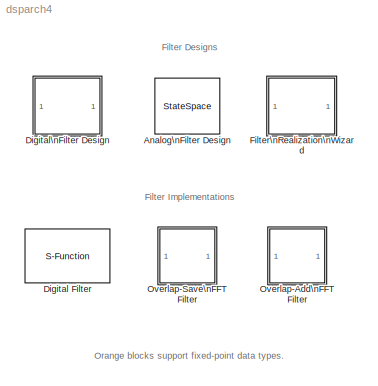
MODEL dsparch4
KIND library
BLOCK [StateSpace] Analog\nFilter Design
  A = a
  B = b
  C = c
  D = d
  MaskCallbackString = dspblkanalog|dspblkanalog|||||
  MaskDescription = Design one of several standard analog filters, implemented in state-space form.
  MaskDisplay = plot(w,h); text(.05,.9,str);\n
  MaskEnableString = on,on,on,on,on,on,on
  MaskHelp = web(dspbhelp);
  MaskIconFrame = on
  MaskIconOpaque = on
  MaskIconRotate = none
  MaskIconUnits = normalized
  MaskInitialization = [a,b,c,d,h,w,str]=dspblkanalog('design', method,filttype,N,Wlo,Whi,Rp,Rs);\n
  MaskPromptString = Design method:|Filter type:|Filter order:|Passband edge frequency (rads/sec):|(unused)|Passband ripple in dB:|Stopband attenuation in dB:
  MaskSelfModifiable = on
  MaskStyleString = popup(Butterworth|Chebyshev I|Chebyshev II|Elliptic|Bessel),popup(Lowpass|Highpass|Bandpass|Bandstop),edit,edit,edit,edit,edit
  MaskTabNameString = ,,,,,,
  MaskToolTipString = on,on,on,on,on,on,on
  MaskTunableValueString = on,on,off,on,on,on,on
  MaskType = Analog Filter Design
  MaskValueString = Butterworth|Lowpass|8|30|80|2|40
  MaskVarAliasString = ,,,,,,
  MaskVariables = method=&1;filttype=&2;N=@3;Wlo=@4;Whi=@5;Rp=@6;Rs=@7;
  MaskVisibilityString = on,on,on,on,off,off,off
BLOCK [S-Function] Digital Filter
  CopyFcn = dspfixptcopycallback
  DialogController = dspDDGCreate
  DialogControllerArgs = DataTag2
  FunctionName = sdspfilter2
  MaskCallbackString = |||||||||||||||||||||||||||||||||||||||||||||||||||||
  MaskDescription = Independently filter each channel of the input over time using a specified digital filter implementation.  Filter coefficients can be specified using either tunable mask dialog parameters or separate input ports (useful for time-varying coefficients).\n\nTime-varying coefficients are supported at one of two possible rates of coefficient update in frame-based processing.  The coefficients can updat...<+252ch>
  MaskDisplay = text(0.5,0.85,s.icon,'horiz','center');\nplot(s.x, s.y);\nport_label('input',s.i1,s.s1);\nport_label('input',s.i2,s.s2);\nport_label('input',1,s.in);\nport_label('output',1,s.out);\n
  MaskEnableString = on,on,on,on,on,on,on,on,on,on,on,on,on,on,off,off,off,on,on,on,on,on,on,on,on,on,off,on,on,on,off,on,on,on,off,on,on,on,off,on,on,on,on,on,on,on,on,on,on,on,on,on,on,on
  MaskHelp = web(dspbhelp);
  MaskIconFrame = on
  MaskIconOpaque = on
  MaskIconRotate = none
  MaskIconUnits = normalized
  MaskInitialization = s           = dspblkfilter('icon');\n[a, dtInfo] = dspblkfilter('init');\n
  MaskPromptString = Transfer function type:|Filter structure:|Filter structure:|Filter structure:|Coefficient source:|Numerator coefficients:|Denominator coefficients:|SOS matrix (Mx6):|Reflection coefficients:|First denominator coefficient = 1, remove 1/a0 term in the structure|Coefficient update rate:|Initial conditions:|Initial conditions on zeros side:|Initial conditions on poles side:|------- Show additional par...<+1288ch>
  MaskSelfModifiable = on
  MaskStyleString = popup(IIR (poles & zeros)|IIR (all poles)|FIR (all zeros)),popup(Direct form I|Direct form I transposed|Direct form II|Direct form II transposed|Biquad direct form I (SOS)|Biquad direct form I transposed (SOS)|Biquad direct form II (SOS)|Biquad direct form II transposed (SOS)),popup(Direct form|Direct form transposed|Lattice AR),popup(Direct form|Direct form symmetric|Direct form antisymmetric|Dir...<+1257ch>
  MaskTabNameString = ,,,,,,,,,,,,,,,,,,,,,,,,,,,,,,,,,,,,,,,,,,,,,,,,,,,,,
  MaskToolTipString = on,on,on,on,on,on,on,on,on,on,on,on,on,on,on,on,on,on,on,on,on,on,on,on,on,on,on,on,on,on,on,on,on,on,on,on,on,on,on,on,on,on,on,on,on,on,on,on,on,on,on,on,on,on
  MaskTunableValueString = off,off,off,off,off,on,on,on,on,off,off,off,off,off,on,off,on,off,off,off,off,off,off,off,off,off,on,off,off,off,on,off,off,off,on,off,off,off,on,off,off,off,off,off,on,off,off,off,off,off,off,off,off,off
  MaskType = Digital Filter
  MaskValueString = IIR (poles & zeros)|Direct form II transposed|Direct form|Direct form|Specify via dialog|[1 2]|[1 0.1]|[1 0.3 0.4 1 0.1 0.2]|[0.2 0.4]|on|One filter per frame|0|0|0|off|on|off|Same word length as input|16|15|Same as numerator|16|15|Same as input|16|15|off|Same as accumulator|16|15|off|Same as product output|32|30|off|Same as input|32|30|off|Same as accumulator|16|15|Floor|off|1|14|Same as input|32...<+30ch>
  MaskVarAliasString = ,,,,,,,,,,,,,,,,,,,,,,,,,,,,,,,,,,,,,,,,,,,,,,,,,,,,,
  MaskVariables = TypePopup=@1;IIRFiltStruct=@2;AllPoleFiltStruct=@3;FIRFiltStruct=@4;CoeffSource=@5;NumCoeffs=@6;DenCoeffs=@7;BiQuadCoeffs=@8;LatticeCoeffs=@9;denIgnore=@10;FiltPerSampPopup=@11;IC=@12;ICnum=@13;ICden=@14;additionalParams=@15;allowOverrides=@16;showCoeff=@17;firstCoeffMode=@18;firstCoeffWordLength=@19;firstCoeffFracLength=@20;secondCoeffMode=@21;secondCoeffWordLength=@22;secondCoeffFracLength=@23;t...<+582ch>
  MaskVisibilityString = on,on,on,on,on,on,on,on,on,on,on,on,on,on,off,off,off,on,on,on,on,on,on,on,on,on,off,on,on,on,off,on,on,on,off,on,on,on,off,on,on,on,on,on,on,on,on,on,on,on,on,on,on,on
  Parameters = a.CoeffsFromMask, a.FilterType, a.FilterStruct, a.FilterPerSample, a.a0CoeffIsUnity, a.Coeff1, a.Coeff2, a.sosCoeffs, a.scaleValues, a.IC, secondCoeffFracLength, scaleValueFracLength, tapSumMode, tapSumWordLength, tapSumFracLength, stageIOMode, stageIOWordLength, stageInFracLength, stageOutFracLength, dtInfo.firstCoeffMode, dtInfo.firstCoeffWordLength, dtInfo.firstCoeffFracLength, dtInfo.prodOutpu...<+309ch>
  Ports = [1, 1]
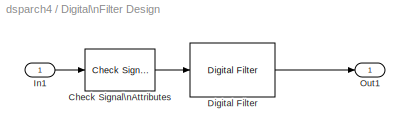
BLOCK [SubSystem] Digital\nFilter Design
  CloseFcn = dspblkfdatool('CloseFcn');
  MaskDisplay = plot(h);\ntext(.05,.9,'FDATool')
  MaskIconFrame = on
  MaskIconOpaque = on
  MaskIconRotate = none
  MaskIconUnits = normalized
  MaskInitialization = h = dspblkfdatool('initializationCommands');
  MaskSelfModifiable = on
  MinAlgLoopOccurrences = off
  ModelCloseFcn = dspblkfdatool('ModelCloseFcn');
  NameChangeFcn = dspblkfdatool('NameChange');
  OpenFcn = dspblkfdatool('OpenFcn');
  Ports = [1, 1]
  PropExecContextAcrossSSBoundary = on
  RTWSystemCode = Auto
  StartFcn = dspblkfdatool('StartFcn');
  TreatAsAtomicUnit = on
  UserData = DataTag0
  UserDataPersistent = on
BLOCK [Reference] Digital\nFilter Design/Check Signal\nAttributes  REF=dspsigattribs/Check Signal\nAttributes
  Complexity = Ignore
  DatatypeCheckMethod = Is...
  DatatypeGeneral = Floating-point
  Dimensions = 1-D
  DimsCheckMethod = Ignore
  DtypeFixedSpecific = Any fixed-point
  DtypeFloatSpecific = Any floating-point
  DtypeIntSpecific = Any integer
  Frame = Ignore
  Ports = [1, 1]
  SampleMode = Ignore
  ShowPortLabels = on
  SigAttribCheckMethod = Does not match attributes exactly
  SourceBlock = dspsigattribs/Check Signal\nAttributes
  SourceType = Check Signal Attributes
BLOCK [Reference] Digital\nFilter Design/Digital Filter  REF=dsparch4/Digital Filter
  AllPoleFiltStruct = Direct form
  BiQuadCoeffs = [1 0.3 0.4 1 0.1 0.2]
  CoeffSource = Specify via dialog
  DenCoeffs = [1 0.1]
  DialogController = dspDDGCreate
  DialogControllerArgs = DataTag1
  FIRFiltStruct = Direct form
  FiltPerSampPopup = One filter per frame
  IC = 0
  ICden = 0
  ICnum = 0
  IIRFiltStruct = Direct form II transposed
  LatticeCoeffs = [0.2 0.4]
  LockScale = off
  NumCoeffs = [-0.00210513308421233 -0.0108086929126824 -0.0274040066202062 -0.0409457925088376 -0.0265637803556961 0.0373657306444183 0.143461670470426 0.246522720033777 0.289577286549258 0.246522720033777 0.143461670470426 0.0373657306444183 -0.0265637803556961 -0.0409457925088376 -0.0274040066202062 -0.0108086929126824 -0.00210513308421233]
  Ports = [1, 1]
  ScaleValues = 1
  SourceBlock = dsparch4/Digital Filter
  SourceType = Digital Filter
  TypePopup = FIR (all zeros)
  accumFracLength = 30
  accumMode = Same as product output
  accumWordLength = 32
  additionalParams = off
  allowOverrides = on
  denIgnore = on
  firstCoeffFracLength = 15
  firstCoeffMode = Same word length as input
  firstCoeffWordLength = 16
  memoryFracLength = 15
  memoryMode = Same as accumulator
  memoryWordLength = 16
  outputFracLength = 15
  outputMode = Same as accumulator
  outputWordLength = 16
  overflowMode = off
  prodOutputFracLength = 30
  prodOutputMode = Same as input
  prodOutputWordLength = 32
  roundingMode = Floor
  scaleValueFracLength = 14
  secondCoeffFracLength = 15
  secondCoeffMode = Same as numerator
  secondCoeffWordLength = 16
  showAcc = off
  showCoeff = off
  showMem = off
  showMpy = off
  showOut = off
  stageIOMode = Same as input
  stageIOWordLength = 16
  stageInFracLength = 15
  stageOutFracLength = 15
  tapSumFracLength = 30
  tapSumMode = Same as input
  tapSumWordLength = 32
  thirdCoeffFracLength = 15
  thirdCoeffMode = Same as input
  thirdCoeffWordLength = 16
BLOCK [Inport] Digital\nFilter Design/In1
  IconDisplay = Port number
  LatchInput = off
BLOCK [Outport] Digital\nFilter Design/Out1
  BusOutputAsStruct = off
  IconDisplay = Port number
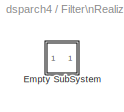
BLOCK [SubSystem] Filter\nRealization\nWizard
  CopyFcn = dspfixptcopycallback
  MaskDescription = Automatically construct filter realizations with specific architectures, using sum, gain, and delay blocks.
  MaskDisplay = text(.05, .9, 'FDATool');\nplot([[xl NaN xz NaN xg NaN xs NaN]*.9-.075 xw],\n[[yl NaN yz NaN yg NaN ys NaN]*.9-.1 yw]);
  MaskHelp = web(dspbhelp);
  MaskIconFrame = on
  MaskIconOpaque = on
  MaskIconRotate = none
  MaskIconUnits = normalized
  MaskInitialization = xw=[NaN 0.8 0.8 NaN 0.687 0.743 NaN 0.64 0.72 NaN 0.710 0.743 NaN 0.8 0.8 NaN 0.913 0.857 NaN 0.96 0.88 NaN 0.808 0.792 0.961 0.978 0.808 NaN 0.825 0.808 NaN 0.961 0.944];\nyw=[NaN 0.64 0.72 NaN 0.687 0.743 NaN 0.8 0.8 NaN 0.890 0.857 NaN 0.96 0.88 NaN 0.913 0.857 NaN 0.8 0.8 NaN 0.808 0.792 0.622 0.639 0.808 NaN 0.792 0.775 NaN 0.656 0.639];\n\nxl = [.1 .7 NaN .3 .3 NaN .7 .7 NaN .3 .3 NaN .7 .7 ...<+353ch>
  MaskSelfModifiable = on
  MaskType = Filter Realization Wizard
  MinAlgLoopOccurrences = off
  OpenFcn = dspfwiz
  Ports = []
  PropExecContextAcrossSSBoundary = on
  RTWSystemCode = Auto
  TreatAsAtomicUnit = off
BLOCK [SubSystem] Filter\nRealization\nWizard/Empty SubSystem
  MinAlgLoopOccurrences = off
  Ports = []
  PropExecContextAcrossSSBoundary = on
  RTWSystemCode = Auto
  TreatAsAtomicUnit = off
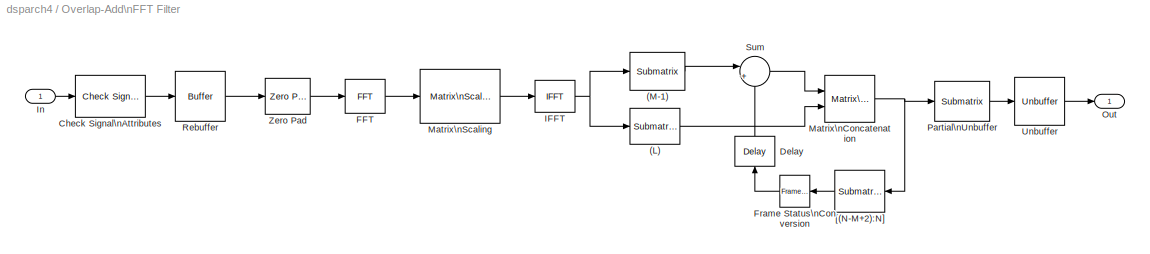
BLOCK [SubSystem] Overlap-Add\nFFT Filter
  MaskCallbackString = ||
  MaskDescription = FFT based filtering using the overlap-add algorithm. Set 'Output' to 'Complex' if either the input signal or the filter coefficients are complex.\n\n'FFT Size' must equal or exceed the number of filter coefficients.  Smaller FFT sizes lead to less latency but also less computational efficiency, decreasing the benefits of frequency domain processing.
  MaskDisplay = disp('Overlap\\nAdd');\n... plot(log10(abs(H(1:(N/2)))))
  MaskEnableString = on,on,on
  MaskHelp = web(dspbhelp);
  MaskIconFrame = on
  MaskIconOpaque = on
  MaskIconRotate = none
  MaskIconUnits = autoscale
  MaskInitialization = [N,H,M,L] = dspblkolapfilt('init',double(Nfft),h);\n
  MaskPromptString = FFT size: |FIR coefficients: |Output:
  MaskSelfModifiable = on
  MaskStyleString = edit,edit,popup(Real|Complex)
  MaskTabNameString = ,,
  MaskToolTipString = on,on,on
  MaskTunableValueString = off,off,off
  MaskType = Overlap-Add FFT Filter
  MaskValueString = 64|fir1(20,0.2)|Real
  MaskVarAliasString = ,,
  MaskVariables = Nfft=@1;h=@2;output_complexity=@3;
  MaskVisibilityString = on,on,on
  MinAlgLoopOccurrences = off
  Ports = [1, 1]
  PropExecContextAcrossSSBoundary = on
  RTWSystemCode = Auto
  TreatAsAtomicUnit = off
BLOCK [Reference] Overlap-Add\nFFT Filter/(L)  REF=dspmtrx3/Submatrix
  ColEndIndex = 1
  ColEndMode = Last
  ColSpan = All columns
  ColStartIndex = 1
  ColStartMode = First
  Ports = [1, 1]
  RowEndIndex = 1
  RowEndMode = Last
  RowSpan = Range of rows
  RowStartIndex = L-1
  RowStartMode = Offset from last
  SourceBlock = dspmtrx3/Submatrix
  SourceType = Submatrix
BLOCK [Reference] Overlap-Add\nFFT Filter/(M-1)  REF=dspmtrx3/Submatrix
  ColEndIndex = 1
  ColEndMode = Last
  ColSpan = All columns
  ColStartIndex = 1
  ColStartMode = First
  Ports = [1, 1]
  RowEndIndex = M-1
  RowEndMode = Index
  RowSpan = Range of rows
  RowStartIndex = M-1
  RowStartMode = First
  SourceBlock = dspmtrx3/Submatrix
  SourceType = Submatrix
BLOCK [Reference] Overlap-Add\nFFT Filter/Check Signal\nAttributes  REF=dspsigattribs/Check Signal\nAttributes
  Complexity = Ignore
  DatatypeCheckMethod = Is...
  DatatypeGeneral = Floating-point
  Dimensions = 1-D
  DimsCheckMethod = Ignore
  DtypeFixedSpecific = Any fixed-point
  DtypeFloatSpecific = Any floating-point
  DtypeIntSpecific = Any integer
  Frame = Ignore
  Ports = [1, 1]
  SampleMode = Ignore
  ShowPortLabels = on
  SigAttribCheckMethod = Does not match attributes exactly
  SourceBlock = dspsigattribs/Check Signal\nAttributes
  SourceType = Check Signal Attributes
BLOCK [Reference] Overlap-Add\nFFT Filter/Delay  REF=dspsigops/Delay
  Ports = [1, 1]
  SourceBlock = dspsigops/Delay
  SourceType = Delay
  delay = 1
  dif_ic_for_ch = off
  dif_ic_for_dly = off
  dly_unit = Samples
  ic = 0
  ic_detail = off
  reset_popup = None
BLOCK [Reference] Overlap-Add\nFFT Filter/FFT  REF=dspxfrm3/FFT
  BitRevOrder = on
  CompMethod = Table lookup
  Ports = [1, 1]
  SkipNorm = on
  SourceBlock = dspxfrm3/FFT
  SourceType = FFT
  TableOpt = Speed
  accumFracLength = 30
  accumMode = Inherit via internal rule
  accumWordLength = 32
  additionalParams = off
  allowOverrides = off
  firstCoeffFracLength = 15
  firstCoeffMode = Same word length as input
  firstCoeffWordLength = 16
  outputFracLength = 15
  outputMode = Inherit via internal rule
  outputWordLength = 16
  overflowMode = off
  prodOutputFracLength = 30
  prodOutputMode = Inherit via internal rule
  prodOutputWordLength = 32
  roundingMode = Floor
BLOCK [Reference] Overlap-Add\nFFT Filter/Frame Status\nConversion  REF=dspsigattribs/Frame Status\nConversion
  Ports = [1, 1]
  ShowPortLabels = off
  SourceBlock = dspsigattribs/Frame Status\nConversion
  SourceType = Frame Status Conversion
  growRefPort = off
  outframe = Sample-based
BLOCK [Reference] Overlap-Add\nFFT Filter/IFFT  REF=dspxfrm3/IFFT
  BitRevOrder = on
  CompMethod = Table lookup
  DialogController = dspDDGCreate
  DialogControllerArgs = DataTag3
  Ports = [1, 1]
  SkipNorm = off
  SourceBlock = dspxfrm3/IFFT
  SourceType = IFFT
  TableOpt = Speed
  accumFracLength = 24
  accumMode = Inherit via internal rule
  accumWordLength = 32
  additionalParams = off
  allowOverrides = off
  cs_in = on
  firstCoeffFracLength = 15
  firstCoeffMode = Same word length as input
  firstCoeffWordLength = 16
  mode = Real
  outputFracLength = 12
  outputMode = Inherit via internal rule
  outputWordLength = 16
  overflowMode = off
  prodOutputFracLength = 24
  prodOutputMode = Inherit via internal rule
  prodOutputWordLength = 32
  roundingMode = Floor
BLOCK [Inport] Overlap-Add\nFFT Filter/In
  IconDisplay = Port number
  LatchInput = off
BLOCK [Reference] Overlap-Add\nFFT Filter/Matrix\nConcatenation  REF=simulink/Math\nOperations/Matrix\nConcatenation
  Ports = [2, 1]
  SourceBlock = simulink/Math\nOperations/Matrix\nConcatenation
  SourceType = Matrix Concatenation
  catMethod = Vertical
  numInports = 2
BLOCK [Reference] Overlap-Add\nFFT Filter/Matrix\nScaling  REF=dspmtrx3/Matrix\nScaling
  D_Source = Dialog parameter
  D_VectFromMask = bitrevorder(H(:))
  Ports = [1, 1]
  SourceBlock = dspmtrx3/Matrix\nScaling
  SourceType = Matrix Scaling
  accumFracLength = 30
  accumMode = Inherit via internal rule
  accumWordLength = 32
  additionalParams = off
  allowOverrides = off
  firstCoeffFracLength = 15
  firstCoeffMode = Same word length as input
  firstCoeffWordLength = 16
  mode = Scale rows (D*A)
  outputFracLength = 15
  outputMode = Same as product output
  outputWordLength = 16
  overflowMode = off
  prodOutputFracLength = 30
  prodOutputMode = Inherit via internal rule
  prodOutputWordLength = 32
  roundingMode = Floor
BLOCK [Outport] Overlap-Add\nFFT Filter/Out
  BusOutputAsStruct = off
  IconDisplay = Port number
  InitialOutput = 0
BLOCK [Reference] Overlap-Add\nFFT Filter/Partial\nUnbuffer  REF=dspmtrx3/Submatrix
  ColEndIndex = 1
  ColEndMode = Last
  ColSpan = All columns
  ColStartIndex = 1
  ColStartMode = First
  Ports = [1, 1]
  RowEndIndex = L
  RowEndMode = Index
  RowSpan = Range of rows
  RowStartIndex = M
  RowStartMode = First
  SourceBlock = dspmtrx3/Submatrix
  SourceType = Submatrix
BLOCK [Reference] Overlap-Add\nFFT Filter/Rebuffer  REF=dspbuff3/Buffer
  N = L
  Ports = [1, 1]
  SourceBlock = dspbuff3/Buffer
  SourceType = Buffer
  V = 0
  ic = 0
BLOCK [Sum] Overlap-Add\nFFT Filter/Sum
  IconShape = round
  Inputs = |++
  OutDataTypeMode = Inherit via internal rule
  Ports = [2, 1]
  SaturateOnIntegerOverflow = off
BLOCK [Reference] Overlap-Add\nFFT Filter/Unbuffer  REF=dspbuff3/Unbuffer
  Ports = [1, 1]
  SourceBlock = dspbuff3/Unbuffer
  SourceType = Unbuffer
  ic = 0
BLOCK [Reference] Overlap-Add\nFFT Filter/Zero Pad  REF=dspsigops/Zero Pad
  Ports = [1, 1]
  SourceBlock = dspsigops/Zero Pad
  SourceType = Zero Pad
  numOutCols = 1
  numOutRows = N
  padNumOutColsSpecMethod = User-specified
  padNumOutRowsSpecMethod = User-specified
  padSigAt = End
  trunc_flag = None
  zpadAlong = Columns
BLOCK [Reference] Overlap-Add\nFFT Filter/[(N-M+2):N]  REF=dspmtrx3/Submatrix
  ColEndIndex = 1
  ColEndMode = Last
  ColSpan = All columns
  ColStartIndex = 1
  ColStartMode = First
  Ports = [1, 1]
  RowEndIndex = N
  RowEndMode = Last
  RowSpan = Range of rows
  RowStartIndex = (N-M+2)
  RowStartMode = Index
  SourceBlock = dspmtrx3/Submatrix
  SourceType = Submatrix
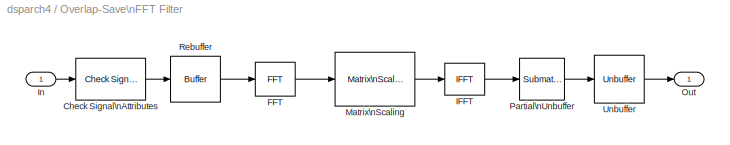
BLOCK [SubSystem] Overlap-Save\nFFT Filter
  MaskCallbackString = ||
  MaskDescription = FFT based filtering using the overlap-save algorithm.  Set 'Output' to 'Complex' if either the input signal or the filter coefficients are complex.\n\n'FFT Size' must equal or exceed the number of filter coefficients.  Smaller FFT sizes lead to less latency but also less computational efficiency, decreasing the benefits of frequency domain processing.
  MaskDisplay = disp('Overlap\\nSave');\n... plot(log10(abs(H(1:(nfft/2)))))
  MaskEnableString = on,on,on
  MaskHelp = web(dspbhelp);
  MaskIconFrame = on
  MaskIconOpaque = on
  MaskIconRotate = none
  MaskIconUnits = autoscale
  MaskInitialization = \n[N,H,M] = dspblkolapfilt('init',double(nfft_in),h);\n
  MaskPromptString = FFT size: |FIR coefficients: |Output:
  MaskSelfModifiable = on
  MaskStyleString = edit,edit,popup(Real|Complex)
  MaskTabNameString = ,,
  MaskToolTipString = on,on,on
  MaskTunableValueString = off,off,off
  MaskType = Overlap-Save FFT Filter
  MaskValueString = 64|fir1(20,0.2)|Real
  MaskVarAliasString = ,,
  MaskVariables = nfft_in=@1;h=@2;output_complexity=@3;
  MaskVisibilityString = on,on,on
  MinAlgLoopOccurrences = off
  Ports = [1, 1]
  PropExecContextAcrossSSBoundary = on
  RTWSystemCode = Auto
  TreatAsAtomicUnit = off
BLOCK [Reference] Overlap-Save\nFFT Filter/Check Signal\nAttributes  REF=dspsigattribs/Check Signal\nAttributes
  Complexity = Ignore
  DatatypeCheckMethod = Is...
  DatatypeGeneral = Floating-point
  Dimensions = 1-D
  DimsCheckMethod = Ignore
  DtypeFixedSpecific = Any fixed-point
  DtypeFloatSpecific = Any floating-point
  DtypeIntSpecific = Any integer
  Frame = Ignore
  Ports = [1, 1]
  SampleMode = Ignore
  ShowPortLabels = on
  SigAttribCheckMethod = Does not match attributes exactly
  SourceBlock = dspsigattribs/Check Signal\nAttributes
  SourceType = Check Signal Attributes
BLOCK [Reference] Overlap-Save\nFFT Filter/FFT  REF=dspxfrm3/FFT
  BitRevOrder = on
  CompMethod = Table lookup
  Ports = [1, 1]
  SkipNorm = on
  SourceBlock = dspxfrm3/FFT
  SourceType = FFT
  TableOpt = Speed
  accumFracLength = 30
  accumMode = Inherit via internal rule
  accumWordLength = 32
  additionalParams = off
  allowOverrides = off
  firstCoeffFracLength = 15
  firstCoeffMode = Same word length as input
  firstCoeffWordLength = 16
  outputFracLength = 15
  outputMode = Inherit via internal rule
  outputWordLength = 16
  overflowMode = off
  prodOutputFracLength = 30
  prodOutputMode = Inherit via internal rule
  prodOutputWordLength = 32
  roundingMode = Floor
BLOCK [Reference] Overlap-Save\nFFT Filter/IFFT  REF=dspxfrm3/IFFT
  BitRevOrder = on
  CompMethod = Table lookup
  DialogController = dspDDGCreate
  DialogControllerArgs = DataTag4
  Ports = [1, 1]
  SkipNorm = off
  SourceBlock = dspxfrm3/IFFT
  SourceType = IFFT
  TableOpt = Speed
  accumFracLength = 24
  accumMode = Inherit via internal rule
  accumWordLength = 32
  additionalParams = off
  allowOverrides = off
  cs_in = on
  firstCoeffFracLength = 15
  firstCoeffMode = Same word length as input
  firstCoeffWordLength = 16
  mode = Real
  outputFracLength = 12
  outputMode = Inherit via internal rule
  outputWordLength = 16
  overflowMode = off
  prodOutputFracLength = 24
  prodOutputMode = Inherit via internal rule
  prodOutputWordLength = 32
  roundingMode = Floor
BLOCK [Inport] Overlap-Save\nFFT Filter/In
  IconDisplay = Port number
  LatchInput = off
BLOCK [Reference] Overlap-Save\nFFT Filter/Matrix\nScaling  REF=dspmtrx3/Matrix\nScaling
  D_Source = Dialog parameter
  D_VectFromMask = bitrevorder(H(:))
  Ports = [1, 1]
  SourceBlock = dspmtrx3/Matrix\nScaling
  SourceType = Matrix Scaling
  accumFracLength = 30
  accumMode = Inherit via internal rule
  accumWordLength = 32
  additionalParams = off
  allowOverrides = off
  firstCoeffFracLength = 15
  firstCoeffMode = Same word length as input
  firstCoeffWordLength = 16
  mode = Scale rows (D*A)
  outputFracLength = 15
  outputMode = Same as product output
  outputWordLength = 16
  overflowMode = off
  prodOutputFracLength = 30
  prodOutputMode = Inherit via internal rule
  prodOutputWordLength = 32
  roundingMode = Floor
BLOCK [Outport] Overlap-Save\nFFT Filter/Out
  BusOutputAsStruct = off
  IconDisplay = Port number
  InitialOutput = 0
BLOCK [Reference] Overlap-Save\nFFT Filter/Partial\nUnbuffer  REF=dspmtrx3/Submatrix
  ColEndIndex = 1
  ColEndMode = Last
  ColSpan = All columns
  ColStartIndex = 1
  ColStartMode = First
  Ports = [1, 1]
  RowEndIndex = 1
  RowEndMode = Last
  RowSpan = Range of rows
  RowStartIndex = M
  RowStartMode = Index
  SourceBlock = dspmtrx3/Submatrix
  SourceType = Submatrix
BLOCK [Reference] Overlap-Save\nFFT Filter/Rebuffer  REF=dspbuff3/Buffer
  N = N
  Ports = [1, 1]
  SourceBlock = dspbuff3/Buffer
  SourceType = Buffer
  V = M-1
  ic = 0
BLOCK [Reference] Overlap-Save\nFFT Filter/Unbuffer  REF=dspbuff3/Unbuffer
  Ports = [1, 1]
  SourceBlock = dspbuff3/Unbuffer
  SourceType = Unbuffer
  ic = 0
ANNOTATION (root): Filter Designs
ANNOTATION (root): Filter Implementations
ANNOTATION (root): Orange blocks support fixed-point data types.
LINE Digital\nFilter Design/Check Signal\nAttributes:1 -> Digital\nFilter Design/Digital Filter:1
LINE Digital\nFilter Design/Digital Filter:1 -> Digital\nFilter Design/Out1:1
LINE Digital\nFilter Design/In1:1 -> Digital\nFilter Design/Check Signal\nAttributes:1
LINE Overlap-Add\nFFT Filter/(L):1 -> Overlap-Add\nFFT Filter/Matrix\nConcatenation:2
LINE Overlap-Add\nFFT Filter/(M-1):1 -> Overlap-Add\nFFT Filter/Sum:1
LINE Overlap-Add\nFFT Filter/Check Signal\nAttributes:1 -> Overlap-Add\nFFT Filter/Rebuffer:1
LINE Overlap-Add\nFFT Filter/Delay:1 -> Overlap-Add\nFFT Filter/Sum:2
LINE Overlap-Add\nFFT Filter/FFT:1 -> Overlap-Add\nFFT Filter/Matrix\nScaling:1
LINE Overlap-Add\nFFT Filter/Frame Status\nConversion:1 -> Overlap-Add\nFFT Filter/Delay:1
NET Overlap-Add\nFFT Filter/IFFT:1 -> Overlap-Add\nFFT Filter/(L):1, Overlap-Add\nFFT Filter/(M-1):1
LINE Overlap-Add\nFFT Filter/In:1 -> Overlap-Add\nFFT Filter/Check Signal\nAttributes:1
NET Overlap-Add\nFFT Filter/Matrix\nConcatenation:1 -> Overlap-Add\nFFT Filter/Partial\nUnbuffer:1, Overlap-Add\nFFT Filter/[(N-M+2):N]:1
LINE Overlap-Add\nFFT Filter/Matrix\nScaling:1 -> Overlap-Add\nFFT Filter/IFFT:1
LINE Overlap-Add\nFFT Filter/Partial\nUnbuffer:1 -> Overlap-Add\nFFT Filter/Unbuffer:1
LINE Overlap-Add\nFFT Filter/Rebuffer:1 -> Overlap-Add\nFFT Filter/Zero Pad:1
LINE Overlap-Add\nFFT Filter/Sum:1 -> Overlap-Add\nFFT Filter/Matrix\nConcatenation:1
LINE Overlap-Add\nFFT Filter/Unbuffer:1 -> Overlap-Add\nFFT Filter/Out:1
LINE Overlap-Add\nFFT Filter/Zero Pad:1 -> Overlap-Add\nFFT Filter/FFT:1
LINE Overlap-Add\nFFT Filter/[(N-M+2):N]:1 -> Overlap-Add\nFFT Filter/Frame Status\nConversion:1
LINE Overlap-Save\nFFT Filter/Check Signal\nAttributes:1 -> Overlap-Save\nFFT Filter/Rebuffer:1
LINE Overlap-Save\nFFT Filter/FFT:1 -> Overlap-Save\nFFT Filter/Matrix\nScaling:1
LINE Overlap-Save\nFFT Filter/IFFT:1 -> Overlap-Save\nFFT Filter/Partial\nUnbuffer:1
LINE Overlap-Save\nFFT Filter/In:1 -> Overlap-Save\nFFT Filter/Check Signal\nAttributes:1
LINE Overlap-Save\nFFT Filter/Matrix\nScaling:1 -> Overlap-Save\nFFT Filter/IFFT:1
LINE Overlap-Save\nFFT Filter/Partial\nUnbuffer:1 -> Overlap-Save\nFFT Filter/Unbuffer:1
LINE Overlap-Save\nFFT Filter/Rebuffer:1 -> Overlap-Save\nFFT Filter/FFT:1
LINE Overlap-Save\nFFT Filter/Unbuffer:1 -> Overlap-Save\nFFT Filter/Out:1
note: NET lines group one-source signal fan-out (src -> all destinations, sorted); 1:1 wires keep LINE
